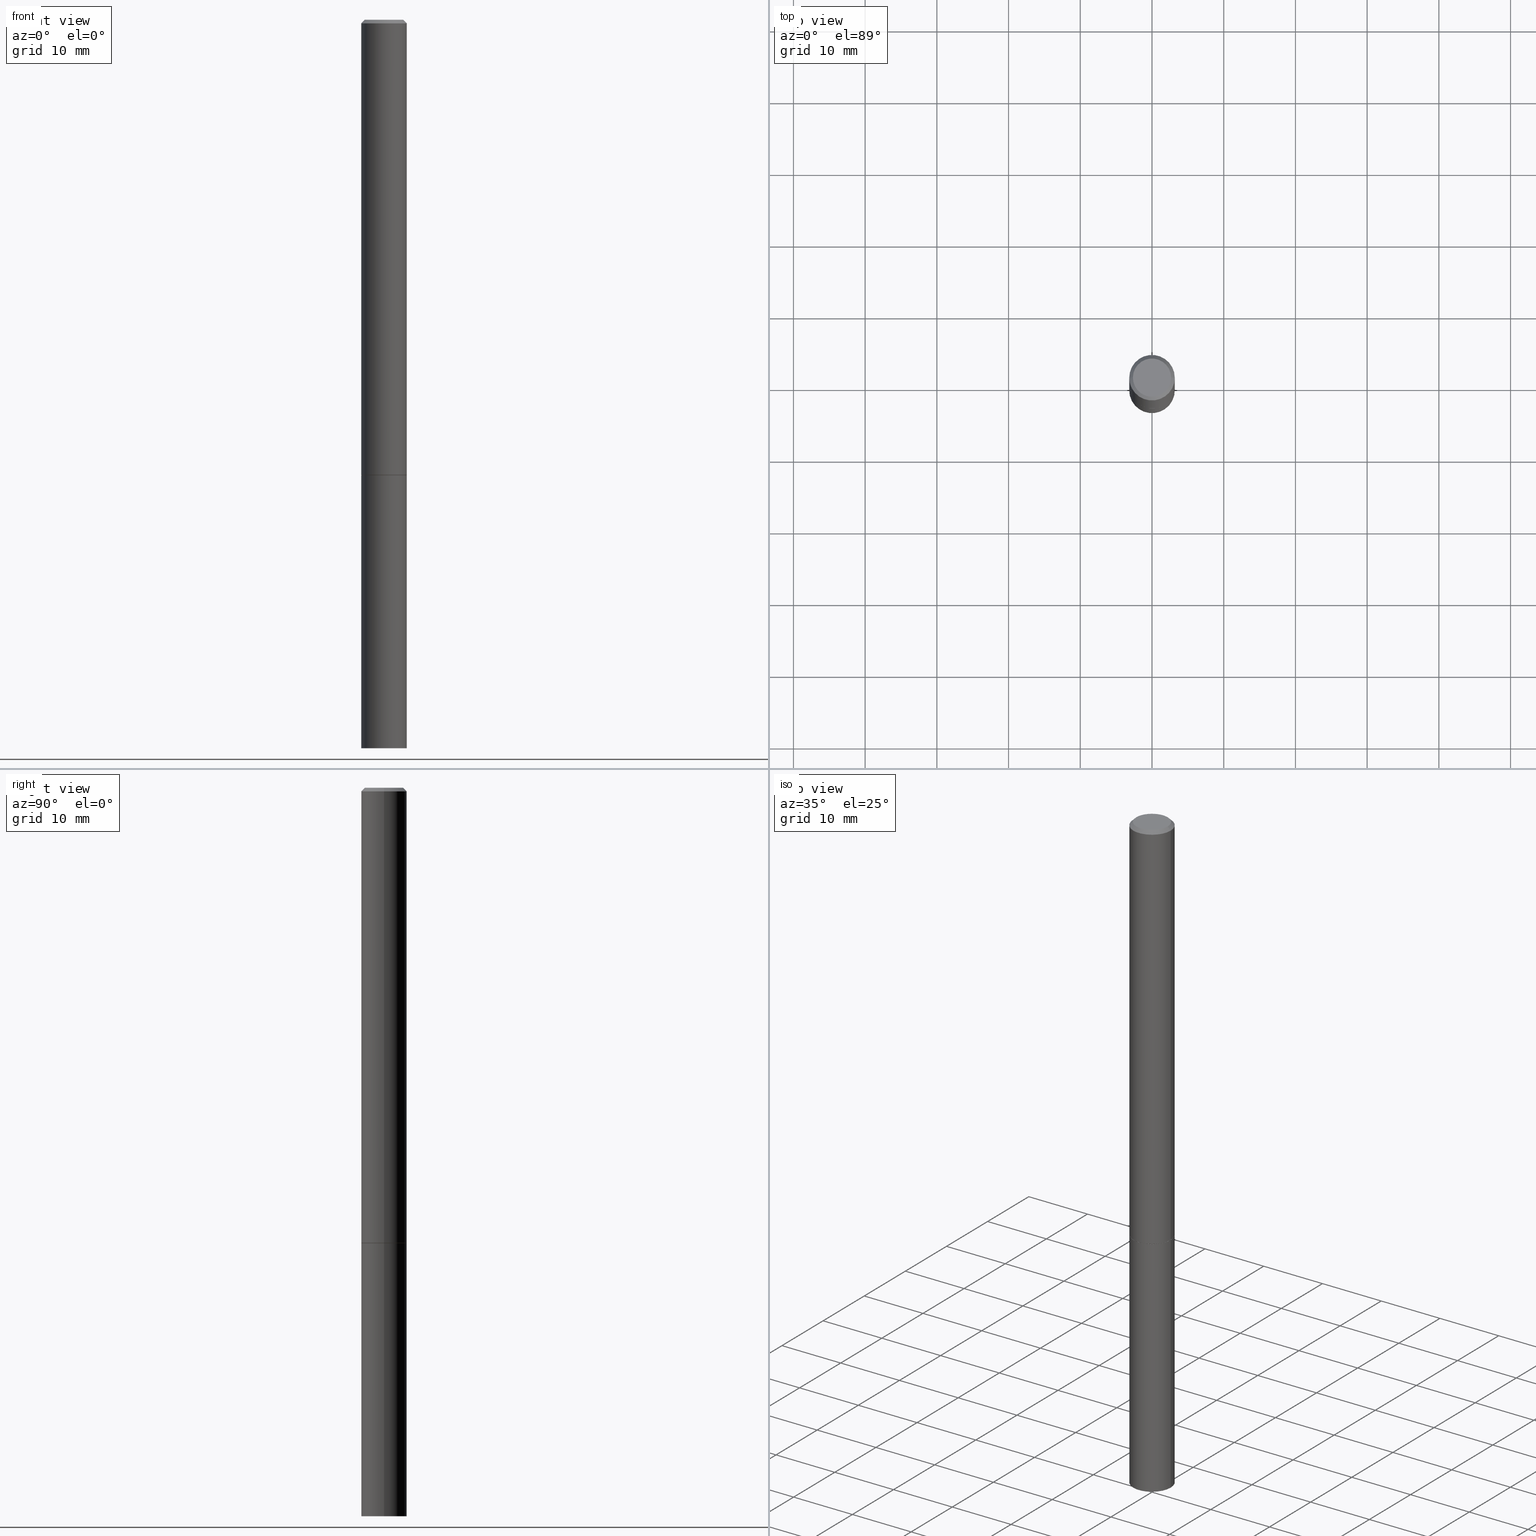
[diagram: canonical four-view strip — front | top / right | iso, engineering-drawing reading convention]
A machine part, canonical four-view strip (front | top / right | iso — engineering-drawing reading convention). The complete STEP part file that produces these views, byte-faithful:
ISO-10303-21;
HEADER;
FILE_DESCRIPTION (( 'STEP AP203' ),
    '1' );
FILE_NAME ('31960.STEP',
    '2024-02-27T14:26:23',
    ( '' ),
    ( '' ),
    'SwSTEP 2.0',
    'SolidWorks 2023',
    '' );
FILE_SCHEMA (( 'CONFIG_CONTROL_DESIGN' ));
ENDSEC;

DATA;
#1 = EDGE_LOOP ( 'NONE', ( #250, #113, #31, #272 ) ) ;
#2 = ORIENTED_EDGE ( 'NONE', *, *, #319, .T. ) ;
#3 = VERTEX_POINT ( 'NONE', #280 ) ;
#4 = APPROVAL ( #258, 'UNSPECIFIED' ) ;
#5 = APPLICATION_PROTOCOL_DEFINITION ( 'international standard', 'config_control_design', 1994, #286 ) ;
#6 = EDGE_LOOP ( 'NONE', ( #110, #144, #49, #292 ) ) ;
#7 = CARTESIAN_POINT ( 'NONE',  ( 0.1250000000000000000, -8.728703347107833388E-16, 6.095220969744919741E-30 ) ) ;
#8 = AXIS2_PLACEMENT_3D ( 'NONE', #304, #202, #96 ) ;
#9 = CC_DESIGN_SECURITY_CLASSIFICATION ( #349, ( #249 ) ) ;
#10 = DIRECTION ( 'NONE',  ( -2.445468806185136597E-29, 3.491481338843145583E-15, 1.000000000000000000 ) ) ;
#11 = CARTESIAN_POINT ( 'NONE',  ( 6.113672015462842613E-29, -8.728703347107864943E-15, -2.500000000000000000 ) ) ;
#12 = PLANE ( 'NONE',  #125 ) ;
#13 = VERTEX_POINT ( 'NONE', #343 ) ;
#14 = PLANE ( 'NONE',  #47 ) ;
#15 = DIRECTION ( 'NONE',  ( 1.000000000000000000, -6.982962677686262766E-15, 0.000000000000000000 ) ) ;
#16 = AXIS2_PLACEMENT_3D ( 'NONE', #234, #323, #60 ) ;
#17 = DIRECTION ( 'NONE',  ( -2.445468806185136597E-29, 3.491481338843145583E-15, 1.000000000000000000 ) ) ;
#18 = EDGE_CURVE ( 'NONE', #303, #13, #24, .T. ) ;
#19 = EDGE_LOOP ( 'NONE', ( #148, #160, #221, #103 ) ) ;
#20 = CYLINDRICAL_SURFACE ( 'NONE', #58, 0.1250000000000000000 ) ;
#21 = CIRCLE ( 'NONE', #84, 0.1250000000000000000 ) ;
#22 = ADVANCED_FACE ( 'NONE', ( #161 ), #340, .T. ) ;
#23 = DATE_AND_TIME ( #162, #54 ) ;
#24 = CIRCLE ( 'NONE', #232, 0.1239999999999999991 ) ;
#25 = APPROVAL_DATE_TIME ( #224, #4 ) ;
#26 = CC_DESIGN_DATE_AND_TIME_ASSIGNMENT ( #23, #182, ( #217 ) ) ;
#27 = VERTEX_POINT ( 'NONE', #45 ) ;
#28 = APPROVAL_ROLE ( '' ) ;
#29 = CONICAL_SURFACE ( 'NONE', #92, 0.1239999999999999991, 0.7853981633978239785 ) ;
#30 = CALENDAR_DATE ( 2024, 27, 2 ) ;
#31 = ORIENTED_EDGE ( 'NONE', *, *, #76, .F. ) ;
#32 = CARTESIAN_POINT ( 'NONE',  ( 9.781875224740546387E-29, -1.396592535537258233E-14, -4.000000000000000000 ) ) ;
#33 = CARTESIAN_POINT ( 'NONE',  ( -0.1250000000000000000, -1.045913593154009919E-14, -4.000000000000000000 ) ) ;
#34 = CARTESIAN_POINT ( 'NONE',  ( 0.1249999999999998612, -8.728703347107823527E-16, 6.095220969744912735E-30 ) ) ;
#35 = CARTESIAN_POINT ( 'NONE',  ( -0.1239999999999999991, -7.842331900417119105E-15, -2.500000000000000000 ) ) ;
#36 = VERTEX_POINT ( 'NONE', #284 ) ;
#37 = CARTESIAN_POINT ( 'NONE',  ( -0.1250000000000000000, -1.045913593154009919E-14, -2.500000000000000000 ) ) ;
#38 = ORIENTED_EDGE ( 'NONE', *, *, #276, .F. ) ;
#39 =( NAMED_UNIT ( * ) PLANE_ANGLE_UNIT ( ) SI_UNIT ( $, .RADIAN. ) );
#40 = AXIS2_PLACEMENT_3D ( 'NONE', #201, #116, #59 ) ;
#41 = DIRECTION ( 'NONE',  ( -1.000000000000000000, 6.982962677686265922E-15, -4.876176775795935793E-29 ) ) ;
#42 = DIRECTION ( 'NONE',  ( -2.445468806185136597E-29, 3.491481338843145583E-15, 1.000000000000000000 ) ) ;
#43 = COORDINATED_UNIVERSAL_TIME_OFFSET ( 5, 0, .BEHIND. ) ;
#44 = SHAPE_DEFINITION_REPRESENTATION ( #302, #310 ) ;
#45 = CARTESIAN_POINT ( 'NONE',  ( -0.1049999999999997463, 7.681258945454873068E-16, 4.268512490095161194E-18 ) ) ;
#46 = ORIENTED_EDGE ( 'NONE', *, *, #52, .F. ) ;
#47 = AXIS2_PLACEMENT_3D ( 'NONE', #331, #68, #321 ) ;
#48 = EDGE_CURVE ( 'NONE', #36, #27, #293, .T. ) ;
#49 = ORIENTED_EDGE ( 'NONE', *, *, #207, .T. ) ;
#50 = PERSON_AND_ORGANIZATION_ROLE ( 'creator' ) ;
#51 = DIRECTION ( 'NONE',  ( 1.000000000000000000, -6.982962677686262766E-15, 0.000000000000000000 ) ) ;
#52 = EDGE_CURVE ( 'NONE', #173, #177, #21, .T. ) ;
#53 = DIRECTION ( 'NONE',  ( 1.000000000000000000, 0.000000000000000000, 0.000000000000000000 ) ) ;
#54 = LOCAL_TIME ( 9, 26, 23.00000000000000000, #308 ) ;
#55 = DIRECTION ( 'NONE',  ( -2.438088387897960049E-29, 3.491481338843145188E-15, 1.000000000000000000 ) ) ;
#56 = CARTESIAN_POINT ( 'NONE',  ( -0.1249999999999997086, 8.030407079339183643E-16, -0.02000000000000000736 ) ) ;
#57 = CC_DESIGN_DATE_AND_TIME_ASSIGNMENT ( #218, #74, ( #349 ) ) ;
#58 = AXIS2_PLACEMENT_3D ( 'NONE', #123, #269, #243 ) ;
#59 = DIRECTION ( 'NONE',  ( 1.000000000000000000, -6.982962677686266711E-15, 4.876176775795935793E-29 ) ) ;
#60 = DIRECTION ( 'NONE',  ( 1.000000000000000000, -6.982962677686266711E-15, 4.876176775795935793E-29 ) ) ;
#61 = CC_DESIGN_PERSON_AND_ORGANIZATION_ASSIGNMENT ( #83, #317, ( #249 ) ) ;
#62 = CARTESIAN_POINT ( 'NONE',  ( 6.113672015462842613E-29, -8.728703347107864943E-15, -2.500000000000000000 ) ) ;
#63 = CARTESIAN_POINT ( 'NONE',  ( 8.728703347108443769E-16, 0.1249999999999912709, -2.500000000000000444 ) ) ;
#64 = DIRECTION ( 'NONE',  ( -2.445468806185136877E-29, 3.491481338843145188E-15, 1.000000000000000000 ) ) ;
#65 = CIRCLE ( 'NONE', #184, 0.1049999999999997463 ) ;
#66 = LINE ( 'NONE', #143, #72 ) ;
#67 = DIRECTION ( 'NONE',  ( -2.445468806185136597E-29, 3.491481338843145583E-15, 1.000000000000000000 ) ) ;
#68 = DIRECTION ( 'NONE',  ( 2.438088387897960049E-29, -3.491481338843145188E-15, -1.000000000000000000 ) ) ;
#69 = CARTESIAN_POINT ( 'NONE',  ( 6.113672015462842613E-29, -8.728703347107864943E-15, -2.500000000000000000 ) ) ;
#70 = PERSON_AND_ORGANIZATION_ROLE ( 'classification_officer' ) ;
#71 = VECTOR ( 'NONE', #64, 39.37007874015748143 ) ;
#72 = VECTOR ( 'NONE', #150, 39.37007874015748143 ) ;
#73 = PLANE ( 'NONE',  #356 ) ;
#74 = DATE_TIME_ROLE ( 'classification_date' ) ;
#75 = PRODUCT ( '31960', '31960', '', ( #79 ) ) ;
#76 = EDGE_CURVE ( 'NONE', #3, #99, #348, .T. ) ;
#77 = AXIS2_PLACEMENT_3D ( 'NONE', #121, #180, #155 ) ;
#78 = LOCAL_TIME ( 9, 26, 23.00000000000000000, #282 ) ;
#79 = MECHANICAL_CONTEXT ( 'NONE', #200, 'mechanical' ) ;
#80 = DIRECTION ( 'NONE',  ( -2.445468806185136597E-29, 3.491481338843145583E-15, 1.000000000000000000 ) ) ;
#81 = EDGE_CURVE ( 'NONE', #27, #36, #65, .T. ) ;
#82 = ORIENTED_EDGE ( 'NONE', *, *, #48, .T. ) ;
#83 = PERSON_AND_ORGANIZATION ( #114, #197 ) ;
#84 = AXIS2_PLACEMENT_3D ( 'NONE', #351, #152, #128 ) ;
#85 = PERSON_AND_ORGANIZATION ( #114, #197 ) ;
#86 = VECTOR ( 'NONE', #93, 39.37007874015748143 ) ;
#87 = DIRECTION ( 'NONE',  ( -2.445468806185136597E-29, 3.491481338843145583E-15, 1.000000000000000000 ) ) ;
#88 = EDGE_CURVE ( 'NONE', #220, #326, #248, .T. ) ;
#89 = DIRECTION ( 'NONE',  ( 1.000000000000000000, -6.982962677686266711E-15, 4.876206205277405800E-29 ) ) ;
#90 = DIRECTION ( 'NONE',  ( -1.000000000000000000, 6.982962677686266711E-15, 0.000000000000000000 ) ) ;
#91 = DIRECTION ( 'NONE',  ( 1.000000000000000000, -6.982962677686270655E-15, 0.000000000000000000 ) ) ;
#92 = AXIS2_PLACEMENT_3D ( 'NONE', #62, #266, #174 ) ;
#93 = DIRECTION ( 'NONE',  ( 0.7071067811865465735, -7.319954787623252890E-15, -0.7071067811865484609 ) ) ;
#94 = FACE_OUTER_BOUND ( 'NONE', #198, .T. ) ;
#95 = CARTESIAN_POINT ( 'NONE',  ( -0.1239999999999999991, -7.847630354765339930E-15, -2.500000000000000000 ) ) ;
#96 = DIRECTION ( 'NONE',  ( 1.000000000000000000, -6.982962677686266711E-15, 0.000000000000000000 ) ) ;
#97 = CARTESIAN_POINT ( 'NONE',  ( 0.1239999999999999991, -9.594590719140960689E-15, -2.500000000000000000 ) ) ;
#98 = CALENDAR_DATE ( 2024, 27, 2 ) ;
#99 = VERTEX_POINT ( 'NONE', #37 ) ;
#100 = VECTOR ( 'NONE', #237, 39.37007874015748854 ) ;
#101 = ADVANCED_FACE ( 'NONE', ( #358 ), #353, .F. ) ;
#102 = VERTEX_POINT ( 'NONE', #335 ) ;
#103 = ORIENTED_EDGE ( 'NONE', *, *, #363, .F. ) ;
#104 = EDGE_LOOP ( 'NONE', ( #46, #166 ) ) ;
#105 = DATE_AND_TIME ( #136, #225 ) ;
#106 = AXIS2_PLACEMENT_3D ( 'NONE', #63, #124, #209 ) ;
#107 = ORIENTED_EDGE ( 'NONE', *, *, #81, .T. ) ;
#108 = APPROVAL_STATUS ( 'not_yet_approved' ) ;
#109 = DIRECTION ( 'NONE',  ( 0.000000000000000000, 0.000000000000000000, 1.000000000000000000 ) ) ;
#110 = ORIENTED_EDGE ( 'NONE', *, *, #190, .F. ) ;
#111 = AXIS2_PLACEMENT_3D ( 'NONE', #298, #17, #91 ) ;
#112 = ORIENTED_EDGE ( 'NONE', *, *, #322, .F. ) ;
#113 = ORIENTED_EDGE ( 'NONE', *, *, #190, .T. ) ;
#114 = PERSON ( 'UNSPECIFIED', 'UNSPECIFIED', 'UNSPECIFIED', ('UNSPECIFIED'), ('UNSPECIFIED'), ('UNSPECIFIED') ) ;
#115 = ORIENTED_EDGE ( 'NONE', *, *, #178, .T. ) ;
#116 = DIRECTION ( 'NONE',  ( -2.445468806185136597E-29, 3.491481338843145583E-15, 1.000000000000000000 ) ) ;
#117 = EDGE_CURVE ( 'NONE', #326, #220, #273, .T. ) ;
#118 = CYLINDRICAL_SURFACE ( 'NONE', #16, 0.1249999999999998612 ) ;
#119 = CIRCLE ( 'NONE', #365, 0.1239999999999999991 ) ;
#120 = CYLINDRICAL_SURFACE ( 'NONE', #40, 0.1249999999999998612 ) ;
#121 = CARTESIAN_POINT ( 'NONE',  ( 6.113672015462842613E-29, -8.728703347107864943E-15, -2.500000000000000000 ) ) ;
#122 = DIRECTION ( 'NONE',  ( 2.445468806185136597E-29, -3.491481338843145583E-15, -1.000000000000000000 ) ) ;
#123 = CARTESIAN_POINT ( 'NONE',  ( 0.000000000000000000, 0.000000000000000000, 0.000000000000000000 ) ) ;
#124 = DIRECTION ( 'NONE',  ( 2.438088387897960049E-29, -3.491481338843145188E-15, -1.000000000000000000 ) ) ;
#125 = AXIS2_PLACEMENT_3D ( 'NONE', #320, #55, #127 ) ;
#126 = EDGE_CURVE ( 'NONE', #99, #3, #132, .T. ) ;
#127 = DIRECTION ( 'NONE',  ( 1.000000000000000000, -6.982962677686265922E-15, 4.876176775795935793E-29 ) ) ;
#128 = DIRECTION ( 'NONE',  ( 1.000000000000000000, -6.982962677686262766E-15, 0.000000000000000000 ) ) ;
#129 = MANIFOLD_SOLID_BREP ( 'Body-Move/Copy2[2]', #183 ) ;
#130 = DIRECTION ( 'NONE',  ( 2.438088387897960049E-29, -3.491481338843145188E-15, -1.000000000000000000 ) ) ;
#131 = APPROVAL ( #108, 'UNSPECIFIED' ) ;
#132 = CIRCLE ( 'NONE', #77, 0.1250000000000000000 ) ;
#133 = COORDINATED_UNIVERSAL_TIME_OFFSET ( 5, 0, .BEHIND. ) ;
#134 = PERSON_AND_ORGANIZATION ( #114, #197 ) ;
#135 = CONICAL_SURFACE ( 'NONE', #233, 0.1249999999999997086, 0.7853981633974469467 ) ;
#136 = CALENDAR_DATE ( 2024, 27, 2 ) ;
#137 = PERSON_AND_ORGANIZATION ( #114, #197 ) ;
#138 = CC_DESIGN_PERSON_AND_ORGANIZATION_ASSIGNMENT ( #228, #50, ( #249 ) ) ;
#139 = AXIS2_PLACEMENT_3D ( 'NONE', #168, #67, #179 ) ;
#140 = CC_DESIGN_APPROVAL ( #4, ( #249 ) ) ;
#141 = DATE_AND_TIME ( #30, #78 ) ;
#142 = ADVANCED_FACE ( 'NONE', ( #94 ), #118, .T. ) ;
#143 = CARTESIAN_POINT ( 'NONE',  ( -0.1250000000000000000, 8.881784197001252323E-16, -6.148668862818632227E-30 ) ) ;
#144 = ORIENTED_EDGE ( 'NONE', *, *, #288, .T. ) ;
#145 = FACE_OUTER_BOUND ( 'NONE', #309, .T. ) ;
#146 = CARTESIAN_POINT ( 'NONE',  ( 6.111226546656659252E-29, -8.725211865769023513E-15, -2.499000000000000998 ) ) ;
#147 = CARTESIAN_POINT ( 'NONE',  ( -0.1249999999999998612, 8.881784197001242463E-16, -6.148668862818625221E-30 ) ) ;
#148 = ORIENTED_EDGE ( 'NONE', *, *, #48, .F. ) ;
#149 = DIRECTION ( 'NONE',  ( 1.000000000000000000, -6.982962677686262766E-15, 0.000000000000000000 ) ) ;
#150 = DIRECTION ( 'NONE',  ( -2.445468806185136877E-29, 3.491481338843145188E-15, 1.000000000000000000 ) ) ;
#151 = ORIENTED_EDGE ( 'NONE', *, *, #81, .F. ) ;
#152 = DIRECTION ( 'NONE',  ( -2.445468806185136597E-29, 3.491481338843145583E-15, 1.000000000000000000 ) ) ;
#153 = DIRECTION ( 'NONE',  ( -2.445468806185136597E-29, 3.491481338843145583E-15, 1.000000000000000000 ) ) ;
#154 = AXIS2_PLACEMENT_3D ( 'NONE', #146, #236, #213 ) ;
#155 = DIRECTION ( 'NONE',  ( 1.000000000000000000, -6.982962677686270655E-15, 0.000000000000000000 ) ) ;
#156 = PERSON_AND_ORGANIZATION ( #114, #197 ) ;
#157 = VERTEX_POINT ( 'NONE', #295 ) ;
#158 = EDGE_CURVE ( 'NONE', #102, #326, #170, .T. ) ;
#159 = ORIENTED_EDGE ( 'NONE', *, *, #330, .F. ) ;
#160 = ORIENTED_EDGE ( 'NONE', *, *, #276, .T. ) ;
#161 = FACE_OUTER_BOUND ( 'NONE', #19, .T. ) ;
#162 = CALENDAR_DATE ( 2024, 27, 2 ) ;
#163 = APPLICATION_PROTOCOL_DEFINITION ( 'international standard', 'config_control_design', 1994, #200 ) ;
#164 = CC_DESIGN_PERSON_AND_ORGANIZATION_ASSIGNMENT ( #137, #336, ( #217 ) ) ;
#165 = EDGE_LOOP ( 'NONE', ( #2, #222, #364, #341 ) ) ;
#166 = ORIENTED_EDGE ( 'NONE', *, *, #288, .F. ) ;
#167 = APPROVAL_STATUS ( 'not_yet_approved' ) ;
#168 = CARTESIAN_POINT ( 'NONE',  ( 0.000000000000000000, 0.000000000000000000, 0.000000000000000000 ) ) ;
#169 = CC_DESIGN_PERSON_AND_ORGANIZATION_ASSIGNMENT ( #246, #193, ( #75 ) ) ;
#170 = LINE ( 'NONE', #34, #294 ) ;
#171 = DIRECTION ( 'NONE',  ( 1.000000000000000000, -6.982962677686270655E-15, 0.000000000000000000 ) ) ;
#172 = ORIENTED_EDGE ( 'NONE', *, *, #18, .F. ) ;
#173 = VERTEX_POINT ( 'NONE', #327 ) ;
#174 = DIRECTION ( 'NONE',  ( 1.000000000000000000, -6.982962677686262766E-15, 0.000000000000000000 ) ) ;
#175 =( CONVERSION_BASED_UNIT ( 'INCH', #203 ) LENGTH_UNIT ( ) NAMED_UNIT ( #318 ) );
#176 = AXIS2_PLACEMENT_3D ( 'NONE', #350, #216, #171 ) ;
#177 = VERTEX_POINT ( 'NONE', #33 ) ;
#178 = EDGE_CURVE ( 'NONE', #157, #102, #259, .T. ) ;
#179 = DIRECTION ( 'NONE',  ( 1.000000000000000000, -6.982962677686266711E-15, 4.876176775795935793E-29 ) ) ;
#180 = DIRECTION ( 'NONE',  ( -2.445468806185136597E-29, 3.491481338843145583E-15, 1.000000000000000000 ) ) ;
#181 = CARTESIAN_POINT ( 'NONE',  ( 4.890937612370274910E-31, -6.982962677686295307E-17, -0.02000000000000000736 ) ) ;
#182 = DATE_TIME_ROLE ( 'creation_date' ) ;
#183 = CLOSED_SHELL ( 'NONE', ( #260, #235, #22, #281, #142, #244, #252, #194 ) ) ;
#184 = AXIS2_PLACEMENT_3D ( 'NONE', #361, #87, #215 ) ;
#185 = CC_DESIGN_APPROVAL ( #227, ( #349 ) ) ;
#186 = DIRECTION ( 'NONE',  ( -2.445468806185136597E-29, 3.491481338843145583E-15, 1.000000000000000000 ) ) ;
#187 = PERSON_AND_ORGANIZATION ( #114, #197 ) ;
#188 = ORIENTED_EDGE ( 'NONE', *, *, #363, .T. ) ;
#189 = VECTOR ( 'NONE', #325, 39.37007874015748143 ) ;
#190 = EDGE_CURVE ( 'NONE', #177, #99, #66, .T. ) ;
#191 = ORIENTED_EDGE ( 'NONE', *, *, #126, .T. ) ;
#192 = EDGE_LOOP ( 'NONE', ( #346, #339, #313, #229 ) ) ;
#193 = PERSON_AND_ORGANIZATION_ROLE ( 'design_owner' ) ;
#194 = ADVANCED_FACE ( 'NONE', ( #240 ), #14, .F. ) ;
#195 = UNCERTAINTY_MEASURE_WITH_UNIT (LENGTH_MEASURE( 1.000000000000000082E-05 ), #175, 'distance_accuracy_value', 'NONE');
#196 = AXIS2_PLACEMENT_3D ( 'NONE', #256, #109, #53 ) ;
#197 = ORGANIZATION ( 'UNSPECIFIED', 'UNSPECIFIED', '' ) ;
#198 = EDGE_LOOP ( 'NONE', ( #159, #115, #267, #314 ) ) ;
#199 = APPROVAL_PERSON_ORGANIZATION ( #85, #227, #28 ) ;
#200 = APPLICATION_CONTEXT ( 'configuration controlled 3d designs of mechanical parts and assemblies' ) ;
#201 = CARTESIAN_POINT ( 'NONE',  ( 0.000000000000000000, 0.000000000000000000, 0.000000000000000000 ) ) ;
#202 = DIRECTION ( 'NONE',  ( -2.445468806185136597E-29, 3.491481338843145583E-15, 1.000000000000000000 ) ) ;
#203 = LENGTH_MEASURE_WITH_UNIT ( LENGTH_MEASURE( 0.02539999999999999897 ), #264 );
#204 = ORIENTED_EDGE ( 'NONE', *, *, #178, .F. ) ;
#205 = DIRECTION ( 'NONE',  ( 1.000000000000000000, -6.982962677686266711E-15, 0.000000000000000000 ) ) ;
#206 = CYLINDRICAL_SURFACE ( 'NONE', #139, 0.1250000000000000000 ) ;
#207 = EDGE_CURVE ( 'NONE', #173, #3, #261, .T. ) ;
#208 = EDGE_LOOP ( 'NONE', ( #38, #151, #188, #223 ) ) ;
#209 = DIRECTION ( 'NONE',  ( -1.000000000000000000, 6.982962677686265922E-15, -4.876176775795935793E-29 ) ) ;
#210 = LINE ( 'NONE', #147, #71 ) ;
#211 = CIRCLE ( 'NONE', #176, 0.1250000000000000000 ) ;
#212 = CARTESIAN_POINT ( 'NONE',  ( 4.890937612370274910E-31, -6.982962677686295307E-17, -0.02000000000000000736 ) ) ;
#213 = DIRECTION ( 'NONE',  ( 1.000000000000000000, -6.982962677686270655E-15, 0.000000000000000000 ) ) ;
#214 = LINE ( 'NONE', #97, #100 ) ;
#215 = DIRECTION ( 'NONE',  ( 1.000000000000000000, -6.982962677686266711E-15, 4.876206205277405800E-29 ) ) ;
#216 = DIRECTION ( 'NONE',  ( -2.445468806185136597E-29, 3.491481338843145583E-15, 1.000000000000000000 ) ) ;
#217 = PRODUCT_DEFINITION ( 'UNKNOWN', '', #249, #251 ) ;
#218 = DATE_AND_TIME ( #98, #241 ) ;
#219 = AXIS2_PLACEMENT_3D ( 'NONE', #69, #186, #149 ) ;
#220 = VERTEX_POINT ( 'NONE', #56 ) ;
#221 = ORIENTED_EDGE ( 'NONE', *, *, #117, .T. ) ;
#222 = ORIENTED_EDGE ( 'NONE', *, *, #330, .T. ) ;
#223 = ORIENTED_EDGE ( 'NONE', *, *, #88, .T. ) ;
#224 = DATE_AND_TIME ( #279, #312 ) ;
#225 = LOCAL_TIME ( 9, 26, 23.00000000000000000, #43 ) ;
#226 = EDGE_LOOP ( 'NONE', ( #275, #191 ) ) ;
#227 = APPROVAL ( #167, 'UNSPECIFIED' ) ;
#228 = PERSON_AND_ORGANIZATION ( #114, #197 ) ;
#229 = ORIENTED_EDGE ( 'NONE', *, *, #338, .F. ) ;
#230 = DIRECTION ( 'NONE',  ( -2.445468806185136877E-29, 3.491481338843145188E-15, 1.000000000000000000 ) ) ;
#231 = CC_DESIGN_PERSON_AND_ORGANIZATION_ASSIGNMENT ( #134, #70, ( #349 ) ) ;
#232 = AXIS2_PLACEMENT_3D ( 'NONE', #307, #80, #51 ) ;
#233 = AXIS2_PLACEMENT_3D ( 'NONE', #212, #122, #90 ) ;
#234 = CARTESIAN_POINT ( 'NONE',  ( 0.000000000000000000, 0.000000000000000000, 0.000000000000000000 ) ) ;
#235 = ADVANCED_FACE ( 'NONE', ( #347 ), #120, .T. ) ;
#236 = DIRECTION ( 'NONE',  ( -2.445468806185136597E-29, 3.491481338843145583E-15, 1.000000000000000000 ) ) ;
#237 = DIRECTION ( 'NONE',  ( 0.7071067811868130271, -2.468850131085038979E-15, 0.7071067811862817853 ) ) ;
#238 = APPROVAL_DATE_TIME ( #141, #227 ) ;
#239 = LINE ( 'NONE', #357, #86 ) ;
#240 = FACE_OUTER_BOUND ( 'NONE', #253, .T. ) ;
#241 = LOCAL_TIME ( 9, 26, 23.00000000000000000, #305 ) ;
#242 = EDGE_LOOP ( 'NONE', ( #112, #274, #271, #204 ) ) ;
#243 = DIRECTION ( 'NONE',  ( 1.000000000000000000, -6.982962677686266711E-15, 4.876176775795935793E-29 ) ) ;
#244 = ADVANCED_FACE ( 'NONE', ( #289 ), #29, .T. ) ;
#245 = DIRECTION ( 'NONE',  ( -1.000000000000000000, 6.982962677686266711E-15, 0.000000000000000000 ) ) ;
#246 = PERSON_AND_ORGANIZATION ( #114, #197 ) ;
#247 = CLOSED_SHELL ( 'NONE', ( #263, #257, #101, #342 ) ) ;
#248 = CIRCLE ( 'NONE', #8, 0.1249999999999997086 ) ;
#249 = PRODUCT_DEFINITION_FORMATION_WITH_SPECIFIED_SOURCE ( 'ANY', '', #75, .NOT_KNOWN. ) ;
#250 = ORIENTED_EDGE ( 'NONE', *, *, #52, .T. ) ;
#251 = DESIGN_CONTEXT ( 'detailed design', #286, 'design' ) ;
#252 = ADVANCED_FACE ( 'NONE', ( #145 ), #12, .F. ) ;
#253 = EDGE_LOOP ( 'NONE', ( #107, #82 ) ) ;
#254 = ORIENTED_EDGE ( 'NONE', *, *, #355, .F. ) ;
#255 = AXIS2_PLACEMENT_3D ( 'NONE', #265, #333, #245 ) ;
#256 = CARTESIAN_POINT ( 'NONE',  ( 0.000000000000000000, 0.000000000000000000, 0.000000000000000000 ) ) ;
#257 = ADVANCED_FACE ( 'NONE', ( #360 ), #73, .T. ) ;
#258 = APPROVAL_STATUS ( 'not_yet_approved' ) ;
#259 = CIRCLE ( 'NONE', #154, 0.1250000000000000000 ) ;
#260 = ADVANCED_FACE ( 'NONE', ( #334 ), #311, .T. ) ;
#261 = LINE ( 'NONE', #7, #345 ) ;
#262 = AXIS2_PLACEMENT_3D ( 'NONE', #32, #359, #296 ) ;
#263 = ADVANCED_FACE ( 'NONE', ( #297 ), #20, .T. ) ;
#264 =( LENGTH_UNIT ( ) NAMED_UNIT ( * ) SI_UNIT ( $, .METRE. ) );
#265 = CARTESIAN_POINT ( 'NONE',  ( 4.890937612370274910E-31, -6.982962677686295307E-17, -0.02000000000000000736 ) ) ;
#266 = DIRECTION ( 'NONE',  ( -2.445468806185136597E-29, 3.491481338843145583E-15, 1.000000000000000000 ) ) ;
#267 = ORIENTED_EDGE ( 'NONE', *, *, #158, .T. ) ;
#268 = AXIS2_PLACEMENT_3D ( 'NONE', #324, #10, #89 ) ;
#269 = DIRECTION ( 'NONE',  ( -2.445468806185136597E-29, 3.491481338843145583E-15, 1.000000000000000000 ) ) ;
#270 = APPROVAL_DATE_TIME ( #105, #131 ) ;
#271 = ORIENTED_EDGE ( 'NONE', *, *, #338, .T. ) ;
#272 = ORIENTED_EDGE ( 'NONE', *, *, #207, .F. ) ;
#273 = CIRCLE ( 'NONE', #283, 0.1249999999999997086 ) ;
#274 = ORIENTED_EDGE ( 'NONE', *, *, #18, .T. ) ;
#275 = ORIENTED_EDGE ( 'NONE', *, *, #76, .T. ) ;
#276 = EDGE_CURVE ( 'NONE', #36, #326, #239, .T. ) ;
#277 = SECURITY_CLASSIFICATION_LEVEL ( 'unclassified' ) ;
#278 = VECTOR ( 'NONE', #291, 39.37007874015748854 ) ;
#279 = CALENDAR_DATE ( 2024, 27, 2 ) ;
#280 = CARTESIAN_POINT ( 'NONE',  ( 0.1250000000000000000, -9.601573681818648281E-15, -2.500000000000000000 ) ) ;
#281 = ADVANCED_FACE ( 'NONE', ( #362 ), #135, .T. ) ;
#282 = COORDINATED_UNIVERSAL_TIME_OFFSET ( 5, 0, .BEHIND. ) ;
#283 = AXIS2_PLACEMENT_3D ( 'NONE', #181, #42, #205 ) ;
#284 = CARTESIAN_POINT ( 'NONE',  ( 0.1049999999999997463, -8.238720831321557908E-16, 4.268512490105855498E-18 ) ) ;
#285 = APPROVAL_PERSON_ORGANIZATION ( #156, #131, #315 ) ;
#286 = APPLICATION_CONTEXT ( 'configuration controlled 3d designs of mechanical parts and assemblies' ) ;
#287 =( NAMED_UNIT ( * ) SI_UNIT ( $, .STERADIAN. ) SOLID_ANGLE_UNIT ( ) );
#288 = EDGE_CURVE ( 'NONE', #177, #173, #306, .T. ) ;
#289 = FACE_OUTER_BOUND ( 'NONE', #242, .T. ) ;
#290 = DIRECTION ( 'NONE',  ( -2.445468806185136877E-29, 3.491481338843145188E-15, 1.000000000000000000 ) ) ;
#291 = DIRECTION ( 'NONE',  ( -0.7071067811868130271, 7.493145998871311837E-15, 0.7071067811862817853 ) ) ;
#292 = ORIENTED_EDGE ( 'NONE', *, *, #126, .F. ) ;
#293 = CIRCLE ( 'NONE', #268, 0.1049999999999997463 ) ;
#294 = VECTOR ( 'NONE', #290, 39.37007874015748143 ) ;
#295 = CARTESIAN_POINT ( 'NONE',  ( -0.1250000000000000000, -3.509342326572812651E-15, -2.499000000000000998 ) ) ;
#296 = DIRECTION ( 'NONE',  ( 1.000000000000000000, -6.982962677686262766E-15, 0.000000000000000000 ) ) ;
#297 = FACE_OUTER_BOUND ( 'NONE', #1, .T. ) ;
#298 = CARTESIAN_POINT ( 'NONE',  ( 6.113672015462842613E-29, -8.728703347107864943E-15, -2.500000000000000000 ) ) ;
#299 = LINE ( 'NONE', #352, #189 ) ;
#300 = MANIFOLD_SOLID_BREP ( 'Body-Move/Copy2[1]', #247 ) ;
#301 = PRODUCT_RELATED_PRODUCT_CATEGORY ( 'detail', '', ( #75 ) ) ;
#302 = PRODUCT_DEFINITION_SHAPE ( 'NONE', 'NONE',  #217 ) ;
#303 = VERTEX_POINT ( 'NONE', #35 ) ;
#304 = CARTESIAN_POINT ( 'NONE',  ( 4.890937612370274910E-31, -6.982962677686295307E-17, -0.02000000000000000736 ) ) ;
#305 = COORDINATED_UNIVERSAL_TIME_OFFSET ( 5, 0, .BEHIND. ) ;
#306 = CIRCLE ( 'NONE', #262, 0.1250000000000000000 ) ;
#307 = CARTESIAN_POINT ( 'NONE',  ( 6.113672015462842613E-29, -8.728703347107864943E-15, -2.500000000000000000 ) ) ;
#308 = COORDINATED_UNIVERSAL_TIME_OFFSET ( 5, 0, .BEHIND. ) ;
#309 = EDGE_LOOP ( 'NONE', ( #254, #172 ) ) ;
#310 = ADVANCED_BREP_SHAPE_REPRESENTATION ( '31960', ( #300, #129, #196 ), #316 ) ;
#311 = CONICAL_SURFACE ( 'NONE', #219, 0.1239999999999999991, 0.7853981633978239785 ) ;
#312 = LOCAL_TIME ( 9, 26, 23.00000000000000000, #133 ) ;
#313 = ORIENTED_EDGE ( 'NONE', *, *, #319, .F. ) ;
#314 = ORIENTED_EDGE ( 'NONE', *, *, #88, .F. ) ;
#315 = APPROVAL_ROLE ( '' ) ;
#316 =( GEOMETRIC_REPRESENTATION_CONTEXT ( 3 ) GLOBAL_UNCERTAINTY_ASSIGNED_CONTEXT ( ( #195 ) ) GLOBAL_UNIT_ASSIGNED_CONTEXT ( ( #175, #39, #287 ) ) REPRESENTATION_CONTEXT ( 'NONE', 'WORKASPACE' ) );
#317 = PERSON_AND_ORGANIZATION_ROLE ( 'design_supplier' ) ;
#318 = DIMENSIONAL_EXPONENTS ( 1.000000000000000000, 0.000000000000000000, 0.000000000000000000, 0.000000000000000000, 0.000000000000000000, 0.000000000000000000, 0.000000000000000000 ) ;
#319 = EDGE_CURVE ( 'NONE', #102, #157, #211, .T. ) ;
#320 = CARTESIAN_POINT ( 'NONE',  ( 6.113672015462842613E-29, -8.728703347107864943E-15, -2.500000000000000000 ) ) ;
#321 = DIRECTION ( 'NONE',  ( -1.000000000000000000, 6.982962677686265922E-15, -4.876176775795935793E-29 ) ) ;
#322 = EDGE_CURVE ( 'NONE', #303, #157, #332, .T. ) ;
#323 = DIRECTION ( 'NONE',  ( -2.445468806185136597E-29, 3.491481338843145583E-15, 1.000000000000000000 ) ) ;
#324 = CARTESIAN_POINT ( 'NONE',  ( -1.043851414335219820E-46, 1.490343170380447200E-32, 4.268512490100411279E-18 ) ) ;
#325 = DIRECTION ( 'NONE',  ( -0.7071067811865465735, 2.468850131082246805E-15, -0.7071067811865484609 ) ) ;
#326 = VERTEX_POINT ( 'NONE', #328 ) ;
#327 = CARTESIAN_POINT ( 'NONE',  ( 0.1250000000000000000, -1.483879569008336409E-14, -4.000000000000000000 ) ) ;
#328 = CARTESIAN_POINT ( 'NONE',  ( 0.1249999999999997086, -9.273918764983023769E-16, -0.02000000000000000736 ) ) ;
#329 = CARTESIAN_POINT ( 'NONE',  ( 8.728703347108810590E-16, 0.1249999999999860251, -4.000000000000000888 ) ) ;
#330 = EDGE_CURVE ( 'NONE', #157, #220, #210, .T. ) ;
#331 = CARTESIAN_POINT ( 'NONE',  ( 7.332110811570562494E-16, 0.1049999999999997463, -3.644712843334792426E-16 ) ) ;
#332 = LINE ( 'NONE', #95, #278 ) ;
#333 = DIRECTION ( 'NONE',  ( 2.445468806185136597E-29, -3.491481338843145583E-15, -1.000000000000000000 ) ) ;
#334 = FACE_OUTER_BOUND ( 'NONE', #192, .T. ) ;
#335 = CARTESIAN_POINT ( 'NONE',  ( 0.1250000000000000000, -9.598082200479808430E-15, -2.499000000000000998 ) ) ;
#336 = PERSON_AND_ORGANIZATION_ROLE ( 'creator' ) ;
#337 = APPROVAL_PERSON_ORGANIZATION ( #187, #4, #344 ) ;
#338 = EDGE_CURVE ( 'NONE', #13, #102, #214, .T. ) ;
#339 = ORIENTED_EDGE ( 'NONE', *, *, #322, .T. ) ;
#340 = CONICAL_SURFACE ( 'NONE', #255, 0.1249999999999997086, 0.7853981633974469467 ) ;
#341 = ORIENTED_EDGE ( 'NONE', *, *, #158, .F. ) ;
#342 = ADVANCED_FACE ( 'NONE', ( #354 ), #206, .T. ) ;
#343 = CARTESIAN_POINT ( 'NONE',  ( 0.1239999999999999991, -9.594590719140960689E-15, -2.500000000000000000 ) ) ;
#344 = APPROVAL_ROLE ( '' ) ;
#345 = VECTOR ( 'NONE', #230, 39.37007874015748143 ) ;
#346 = ORIENTED_EDGE ( 'NONE', *, *, #355, .T. ) ;
#347 = FACE_OUTER_BOUND ( 'NONE', #165, .T. ) ;
#348 = CIRCLE ( 'NONE', #111, 0.1250000000000000000 ) ;
#349 = SECURITY_CLASSIFICATION ( '', '', #277 ) ;
#350 = CARTESIAN_POINT ( 'NONE',  ( 6.111226546656659252E-29, -8.725211865769023513E-15, -2.499000000000000998 ) ) ;
#351 = CARTESIAN_POINT ( 'NONE',  ( 9.781875224740546387E-29, -1.396592535537258233E-14, -4.000000000000000000 ) ) ;
#352 = CARTESIAN_POINT ( 'NONE',  ( -0.1249999999999997086, 8.030407079339183643E-16, -0.02000000000000000736 ) ) ;
#353 = PLANE ( 'NONE',  #106 ) ;
#354 = FACE_OUTER_BOUND ( 'NONE', #6, .T. ) ;
#355 = EDGE_CURVE ( 'NONE', #13, #303, #119, .T. ) ;
#356 = AXIS2_PLACEMENT_3D ( 'NONE', #329, #130, #41 ) ;
#357 = CARTESIAN_POINT ( 'NONE',  ( 0.1249999999999997086, -9.273918764983023769E-16, -0.02000000000000000736 ) ) ;
#358 = FACE_OUTER_BOUND ( 'NONE', #226, .T. ) ;
#359 = DIRECTION ( 'NONE',  ( -2.445468806185136597E-29, 3.491481338843145583E-15, 1.000000000000000000 ) ) ;
#360 = FACE_OUTER_BOUND ( 'NONE', #104, .T. ) ;
#361 = CARTESIAN_POINT ( 'NONE',  ( -1.043851414335219820E-46, 1.490343170380447200E-32, 4.268512490100411279E-18 ) ) ;
#362 = FACE_OUTER_BOUND ( 'NONE', #208, .T. ) ;
#363 = EDGE_CURVE ( 'NONE', #27, #220, #299, .T. ) ;
#364 = ORIENTED_EDGE ( 'NONE', *, *, #117, .F. ) ;
#365 = AXIS2_PLACEMENT_3D ( 'NONE', #11, #153, #15 ) ;
#366 = CC_DESIGN_APPROVAL ( #131, ( #217 ) ) ;
ENDSEC;
END-ISO-10303-21;
